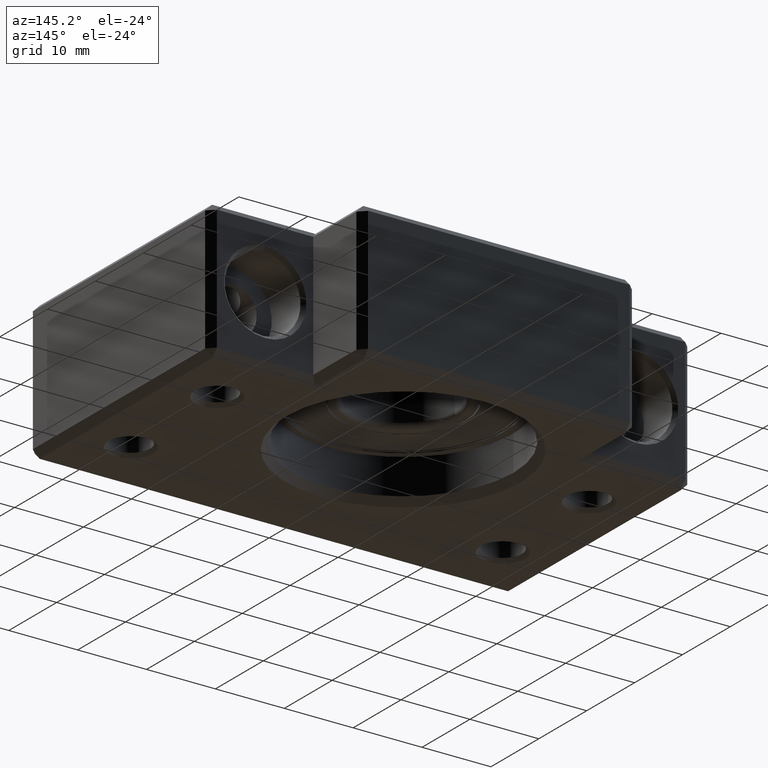
[diagram: clean part render]
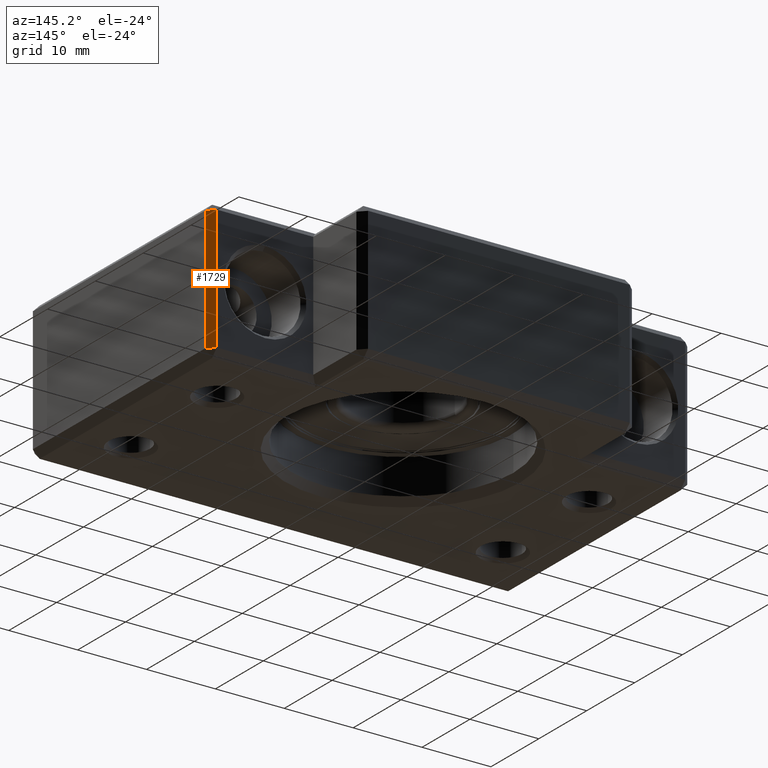
[diagram: same view with one face highlighted and labeled with its STEP entity id]
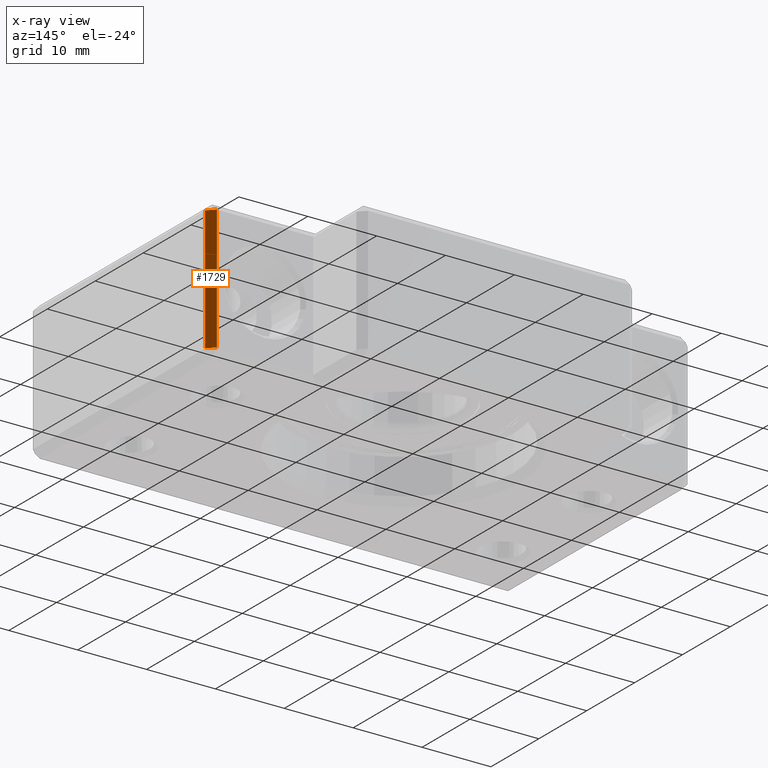
[diagram: x-ray of the same camera — body ghosted, the highlighted face saturated]
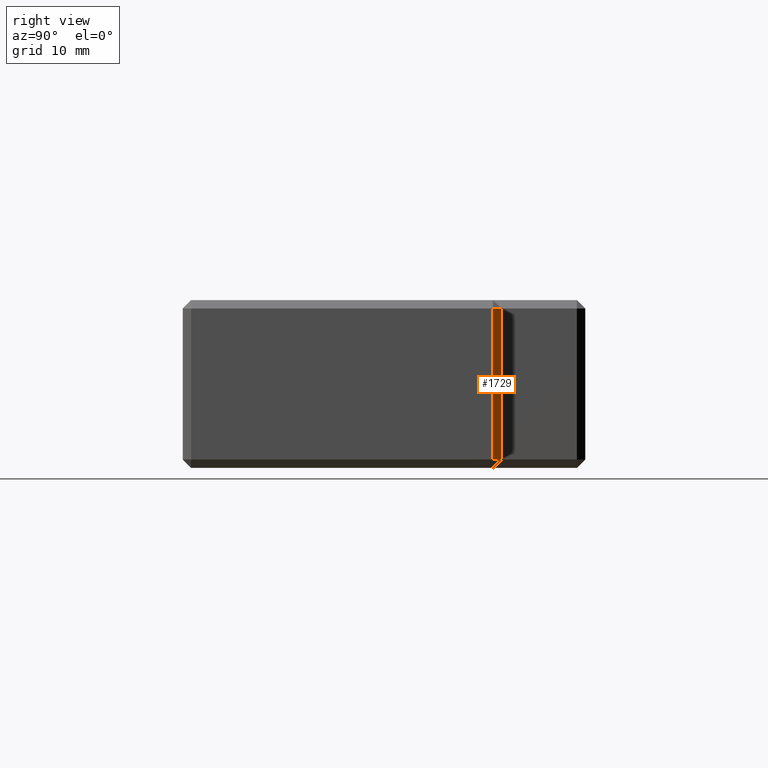
[diagram: same view with one face highlighted and labeled with its STEP entity id]
A machine part, auxiliary view. The second image highlights one B-rep face of the part: STEP entity #1729.
The next image is the same camera in x-ray: the body ghosted, the highlighted face saturated — about 0% of this face is hidden behind the body in this view.
A second angle (right view) of the same face is appended — the face is thin or edge-on in the first view.
In plain terms, the highlighted planar face has unit normal (-0.7071, -0.7071, 0).
Its self-contained STEP definition (entity closure, byte-faithful):
#1131 = VERTEX_POINT ( 'NONE', #4223 ) ;
#1135 = EDGE_CURVE ( 'NONE', #1131, #1195, #4215, .T. ) ;
#1180 = VERTEX_POINT ( 'NONE', #4272 ) ;
#1184 = EDGE_CURVE ( 'NONE', #1180, #1213, #4271, .T. ) ;
#1195 = VERTEX_POINT ( 'NONE', #4308 ) ;
#1213 = VERTEX_POINT ( 'NONE', #4343 ) ;
#1729 = ADVANCED_FACE ( 'NONE', ( #5256 ), #5250, .F. ) ;
#1730 = EDGE_LOOP ( 'NONE', ( #1732, #1737, #1739, #1742 ) ) ;
#1732 = ORIENTED_EDGE ( 'NONE', *, *, #1734, .F. ) ;
#1734 = EDGE_CURVE ( 'NONE', #1213, #1131, #5304, .T. ) ;
#1737 = ORIENTED_EDGE ( 'NONE', *, *, #1184, .F. ) ;
#1739 = ORIENTED_EDGE ( 'NONE', *, *, #1741, .F. ) ;
#1741 = EDGE_CURVE ( 'NONE', #1195, #1180, #5293, .T. ) ;
#1742 = ORIENTED_EDGE ( 'NONE', *, *, #1135, .F. ) ;
#4212 = DIRECTION ( 'NONE',  ( 0.0000000000000000000, 0.0000000000000000000, 1.000000000000000000 ) ) ;
#4213 = VECTOR ( 'NONE', #4212, 1000.000000000000000 ) ;
#4214 = CARTESIAN_POINT ( 'NONE',  ( 35.00000000000002100, 37.00000000000000700, 10.00000000000000000 ) ) ;
#4215 = LINE ( 'NONE', #4214, #4213 ) ;
#4223 = CARTESIAN_POINT ( 'NONE',  ( 35.00000000000002100, 37.00000000000000700, -8.999999999999985800 ) ) ;
#4268 = DIRECTION ( 'NONE',  ( 0.0000000000000000000, 0.0000000000000000000, -1.000000000000000000 ) ) ;
#4269 = VECTOR ( 'NONE', #4268, 1000.000000000000000 ) ;
#4270 = CARTESIAN_POINT ( 'NONE',  ( 34.00000000000000700, 38.00000000000000700, 10.00000000000000000 ) ) ;
#4271 = LINE ( 'NONE', #4270, #4269 ) ;
#4272 = CARTESIAN_POINT ( 'NONE',  ( 34.00000000000000700, 38.00000000000000700, 9.000000000000000000 ) ) ;
#4308 = CARTESIAN_POINT ( 'NONE',  ( 35.00000000000002100, 37.00000000000000700, 9.000000000000000000 ) ) ;
#4343 = CARTESIAN_POINT ( 'NONE',  ( 34.00000000000000700, 38.00000000000000700, -8.999999999999985800 ) ) ;
#5249 = CARTESIAN_POINT ( 'NONE',  ( 34.00000000000000700, 38.00000000000000700, 10.00000000000000000 ) ) ;
#5250 = PLANE ( 'NONE',  #5311 ) ;
#5256 = FACE_OUTER_BOUND ( 'NONE', #1730, .T. ) ;
#5290 = DIRECTION ( 'NONE',  ( -0.7071067811865524600, 0.7071067811865426900, -6.839255870354795800E-017 ) ) ;
#5291 = VECTOR ( 'NONE', #5290, 1000.000000000000000 ) ;
#5292 = CARTESIAN_POINT ( 'NONE',  ( 34.50000000000001400, 37.50000000000000700, 9.000000000000000000 ) ) ;
#5293 = LINE ( 'NONE', #5292, #5291 ) ;
#5301 = DIRECTION ( 'NONE',  ( 0.7071067811865525700, -0.7071067811865425800, 1.239037099348084800E-016 ) ) ;
#5302 = VECTOR ( 'NONE', #5301, 999.9999999999998900 ) ;
#5303 = CARTESIAN_POINT ( 'NONE',  ( 35.00000000000002100, 37.00000000000000700, -8.999999999999985800 ) ) ;
#5304 = LINE ( 'NONE', #5303, #5302 ) ;
#5309 = DIRECTION ( 'NONE',  ( 0.7071067811865525700, -0.7071067811865425800, 0.0000000000000000000 ) ) ;
#5310 = DIRECTION ( 'NONE',  ( -0.7071067811865425800, -0.7071067811865525700, 0.0000000000000000000 ) ) ;
#5311 = AXIS2_PLACEMENT_3D ( 'NONE', #5249, #5310, #5309 ) ;